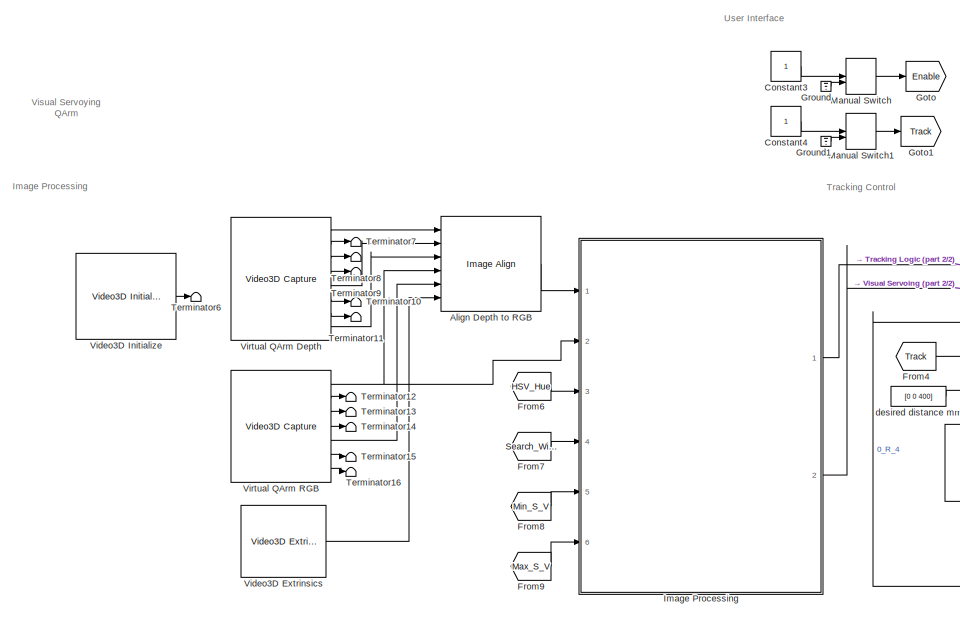
[diagram: root canvas - part 1/2, left side, full height]
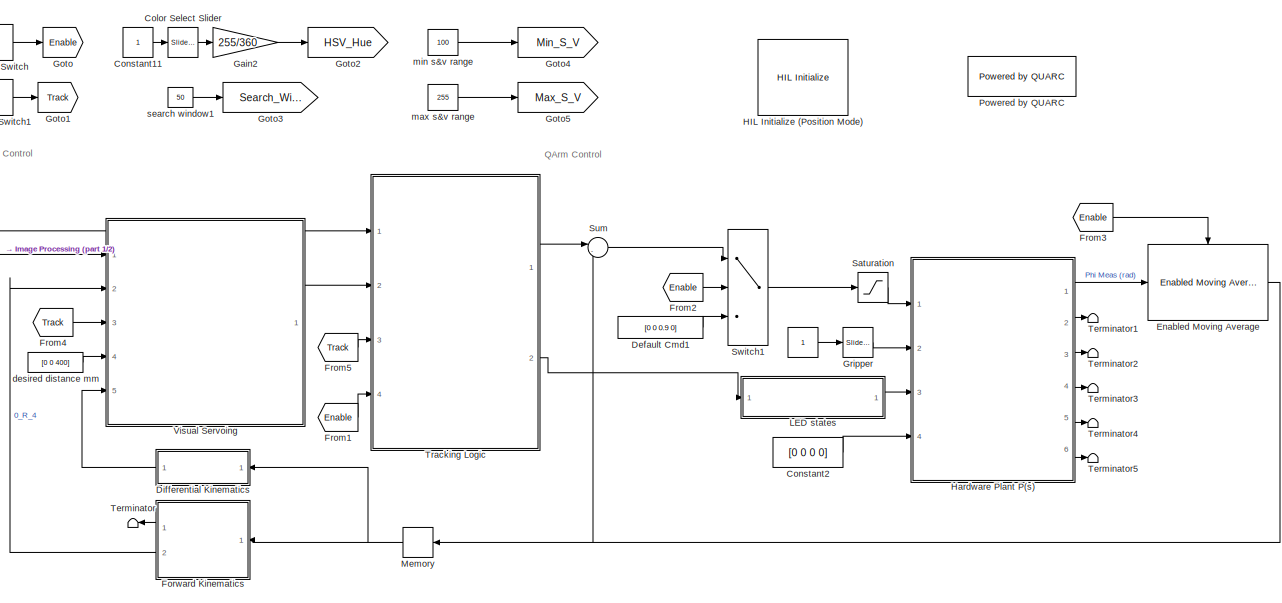
[diagram: root canvas - part 2/2, right side, full height]
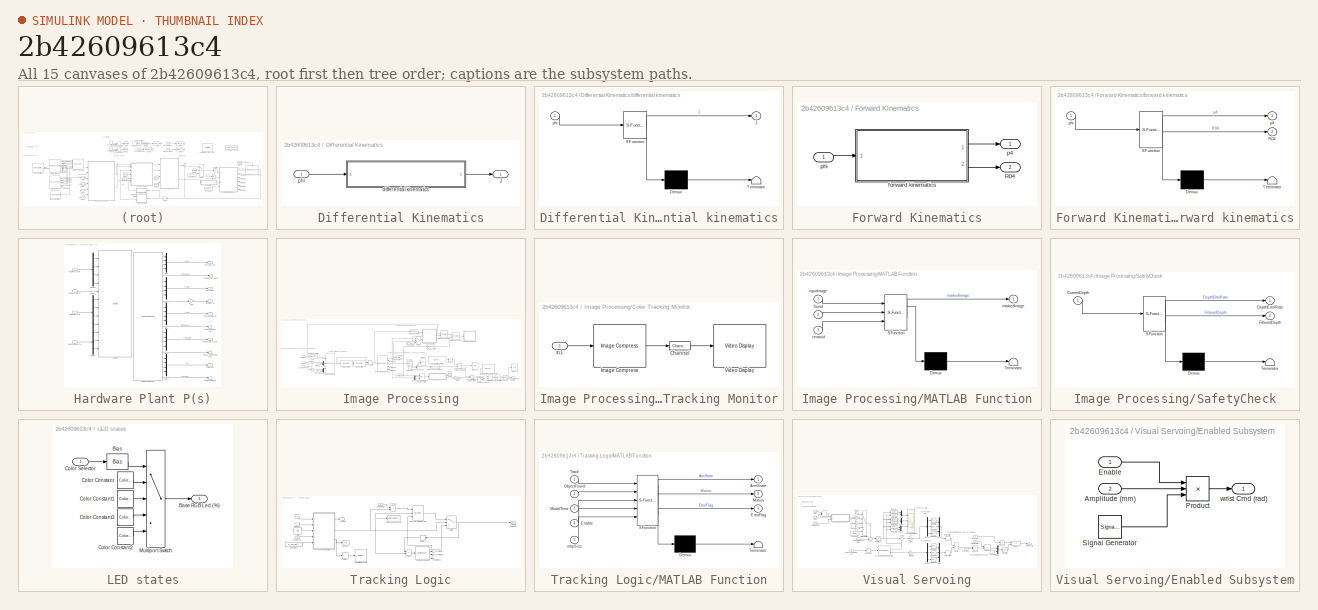
[diagram: thumbnail index - all 15 canvases of the model, root first then tree order]
MODEL slx_2b42609613c4
KIND model
CONFIG AbsTol = auto
CONFIG EnableMultiTasking = on
CONFIG FixedStep = 1/500
CONFIG MaxStep = auto
CONFIG MinStep = auto
CONFIG RelTol = 1e-3
CONFIG SampleTimeConstraint = Unconstrained
CONFIG SolverName = ode4
CONFIG StartTime = 0.0
CONFIG StopTime = inf
BLOCK [Constant]  
BLOCK [Reference] Align Depth to RGB   REF=quarc_library/Image Processing/Generic/Image Align
  Ports = [6, 1]
  SourceBlock = quarc_library/Image Processing/Generic/Image Align
  SourceProductName = QUARC Targets
  SourceType = Image Align
BLOCK [Reference] Color Select Slider  REF=simulink/Math
Operations/Slider
Gain
  Ports = [1, 1]
  SourceBlock = simulink/Math\nOperations/Slider\nGain
  SourceType = Slider Gain
BLOCK [Constant] Constant11
BLOCK [Constant] Constant2
  Value = [0 0 0 0]
BLOCK [Constant] Constant3
BLOCK [Constant] Constant4
BLOCK [Constant] Default Cmd1
  Value = [0 0 0.9 0]
BLOCK [SubSystem] Differential Kinematics
  Ports = [1, 1]
BLOCK [Outport] Differential Kinematics/J
BLOCK [SubSystem] Differential Kinematics/differential kinematics
  ErrorFcn = Stateflow.Translate.translate
  NameLocation = top
  PermitHierarchicalResolution = ExplicitOnly
  Ports = [1, 1]
  SFBlockType = MATLAB Function
  TreatAsAtomicUnit = on
BLOCK [Demux] Differential Kinematics/differential kinematics/ Demux 
  Outputs = 1
  Ports = [1, 1]
BLOCK [S-Function] Differential Kinematics/differential kinematics/ SFunction 
  EnableBusSupport = off
  FunctionName = sf_sfun
  PortCounts = [1 2]
  Ports = [1, 2]
  SFcnIsStateOwnerBlock = off
  SFunctionDeploymentMode = off
  Tag = Stateflow S-Function 6
BLOCK [Terminator] Differential Kinematics/differential kinematics/ Terminator 
BLOCK [Outport] Differential Kinematics/differential kinematics/J
  VectorParamsAs1DForOutWhenUnconnected = off
BLOCK [Inport] Differential Kinematics/differential kinematics/phi
BLOCK [Inport] Differential Kinematics/phi
  NameLocation = top
BLOCK [Reference] Enabled Moving Average  REF=quarc_library/Discrete/Enabled Moving Average
  Ports = [1, 1, 1]
  SourceBlock = quarc_library/Discrete/Enabled Moving Average
  SourceProductName = QUARC Targets
  SourceType = Enabled Moving Average
BLOCK [SubSystem] Forward Kinematics
  Ports = [1, 2]
BLOCK [Outport] Forward Kinematics/R04
  Port = 2
BLOCK [SubSystem] Forward Kinematics/forward kinematics
  ErrorFcn = Stateflow.Translate.translate
  NameLocation = top
  PermitHierarchicalResolution = ExplicitOnly
  Ports = [1, 2]
  SFBlockType = MATLAB Function
  TreatAsAtomicUnit = on
BLOCK [Demux] Forward Kinematics/forward kinematics/ Demux 
  Outputs = 1
  Ports = [1, 1]
BLOCK [S-Function] Forward Kinematics/forward kinematics/ SFunction 
  EnableBusSupport = off
  FunctionName = sf_sfun
  PortCounts = [1 3]
  Ports = [1, 3]
  SFcnIsStateOwnerBlock = off
  SFunctionDeploymentMode = off
  Tag = Stateflow S-Function 3
BLOCK [Terminator] Forward Kinematics/forward kinematics/ Terminator 
BLOCK [Outport] Forward Kinematics/forward kinematics/R04
  Port = 2
  VectorParamsAs1DForOutWhenUnconnected = off
BLOCK [Outport] Forward Kinematics/forward kinematics/p4
  VectorParamsAs1DForOutWhenUnconnected = off
BLOCK [Inport] Forward Kinematics/forward kinematics/phi
BLOCK [Outport] Forward Kinematics/p4
  NameLocation = top
BLOCK [Inport] Forward Kinematics/phi
BLOCK [From] From1
  GotoTag = Enable
BLOCK [From] From2
  GotoTag = Enable
BLOCK [From] From3
  GotoTag = Enable
BLOCK [From] From4
  GotoTag = Track
BLOCK [From] From5
  GotoTag = Track
BLOCK [From] From6
  GotoTag = HSV_Hue
BLOCK [From] From7
  GotoTag = Search_Window
BLOCK [From] From8
  GotoTag = Min_S_V
BLOCK [From] From9
  GotoTag = Max_S_V
BLOCK [Gain] Gain2
  Gain = 255/360
  NameLocation = top
BLOCK [Goto] Goto
  GotoTag = Enable
  NameLocation = right
BLOCK [Goto] Goto1
  GotoTag = Track
  NameLocation = right
BLOCK [Goto] Goto2
  GotoTag = HSV_Hue
  NameLocation = right
BLOCK [Goto] Goto3
  GotoTag = Search_Window
  NameLocation = right
BLOCK [Goto] Goto4
  GotoTag = Min_S_V
  NameLocation = right
BLOCK [Goto] Goto5
  GotoTag = Max_S_V
  NameLocation = right
BLOCK [Reference] Gripper  REF=simulink/Math
Operations/Slider
Gain
  NameLocation = top
  Ports = [1, 1]
  SourceBlock = simulink/Math\nOperations/Slider\nGain
  SourceType = Slider Gain
BLOCK [Ground] Ground
BLOCK [Ground] Ground1
BLOCK [Reference] HIL Initialize (Position Mode)  REF=quarc_library/Data Acquisition/Generic/Configuration/HIL Initialize
  AttributesFormatString = %<object_name> (%<board_type>-%<board_number>)
  Ports = []
  SourceBlock = quarc_library/Data Acquisition/Generic/Configuration/HIL Initialize
  SourceProductName = QUARC Targets
  SourceType = HIL Initialize
  UserDataPersistent = on
BLOCK [SubSystem] Hardware Plant P(s)
  Permissions = NoReadOrWrite
  Ports = [4, 6]
BLOCK [Inport] Hardware Plant P(s)/Base RGB Led (%)
  Port = 3
BLOCK [Outport] Hardware Plant P(s)/Current (A) [4]
  Port = 5
  VectorParamsAs1DForOutWhenUnconnected = off
BLOCK [Demux] Hardware Plant P(s)/Demux
  Outputs = 3
  Ports = [1, 3]
BLOCK [Demux] Hardware Plant P(s)/Demux1
  Ports = [1, 4]
BLOCK [Demux] Hardware Plant P(s)/Demux2
  Ports = [1, 4]
BLOCK [Gain] Hardware Plant P(s)/Gain
BLOCK [Outport] Hardware Plant P(s)/Gripper (%)
  Port = 2
  VectorParamsAs1DForOutWhenUnconnected = off
BLOCK [Inport] Hardware Plant P(s)/Gripper Cmd (%)
  Port = 2
BLOCK [Terminator] Hardware Plant P(s)/Gripper Current (A)
BLOCK [Terminator] Hardware Plant P(s)/Gripper PWM (%)
BLOCK [Terminator] Hardware Plant P(s)/Gripper Speed (%//s)
BLOCK [Terminator] Hardware Plant P(s)/Gripper Temperature (C)
BLOCK [Reference] Hardware Plant P(s)/HIL Read Timebase1  REF=quarc_library/Data Acquisition/Generic/Timebases/HIL Read
Timebase
  AttributesFormatString = (%<object_name>)
  Ports = [0, 25]
  SourceBlock = quarc_library/Data Acquisition/Generic/Timebases/HIL Read\nTimebase
  SourceProductName = QUARC Targets
  SourceType = HIL Read Timebase
  UserDataPersistent = on
BLOCK [Reference] Hardware Plant P(s)/HIL Write  REF=quarc_library/Data Acquisition/Generic/Immediate I//O/HIL Write
  AttributesFormatString = (%<object_name>)
  Ports = [12]
  SourceBlock = quarc_library/Data Acquisition/Generic/Immediate I//O/HIL Write
  SourceProductName = QUARC Targets
  SourceType = HIL Write
  UserDataPersistent = on
BLOCK [Mux] Hardware Plant P(s)/Mux
  DisplayOption = bar
  Ports = [4, 1]
BLOCK [Mux] Hardware Plant P(s)/Mux1
  DisplayOption = bar
  Ports = [4, 1]
BLOCK [Mux] Hardware Plant P(s)/Mux2
  DisplayOption = bar
  Ports = [4, 1]
BLOCK [Mux] Hardware Plant P(s)/Mux3
  DisplayOption = bar
  Ports = [4, 1]
BLOCK [Mux] Hardware Plant P(s)/Mux4
  DisplayOption = bar
  Ports = [4, 1]
BLOCK [Outport] Hardware Plant P(s)/PWM (%) [4]
  Port = 4
  VectorParamsAs1DForOutWhenUnconnected = off
BLOCK [Inport] Hardware Plant P(s)/PWM Cmd (%) [4]
  Port = 4
BLOCK [Outport] Hardware Plant P(s)/Phi (rad) [4]
  VectorParamsAs1DForOutWhenUnconnected = off
BLOCK [Inport] Hardware Plant P(s)/Phi Cmd (rad) [4]
BLOCK [Outport] Hardware Plant P(s)/Phi_dot (rad//s) [4]
  Port = 3
  VectorParamsAs1DForOutWhenUnconnected = off
BLOCK [Outport] Hardware Plant P(s)/Temperature (C) [4]
  Port = 6
  VectorParamsAs1DForOutWhenUnconnected = off
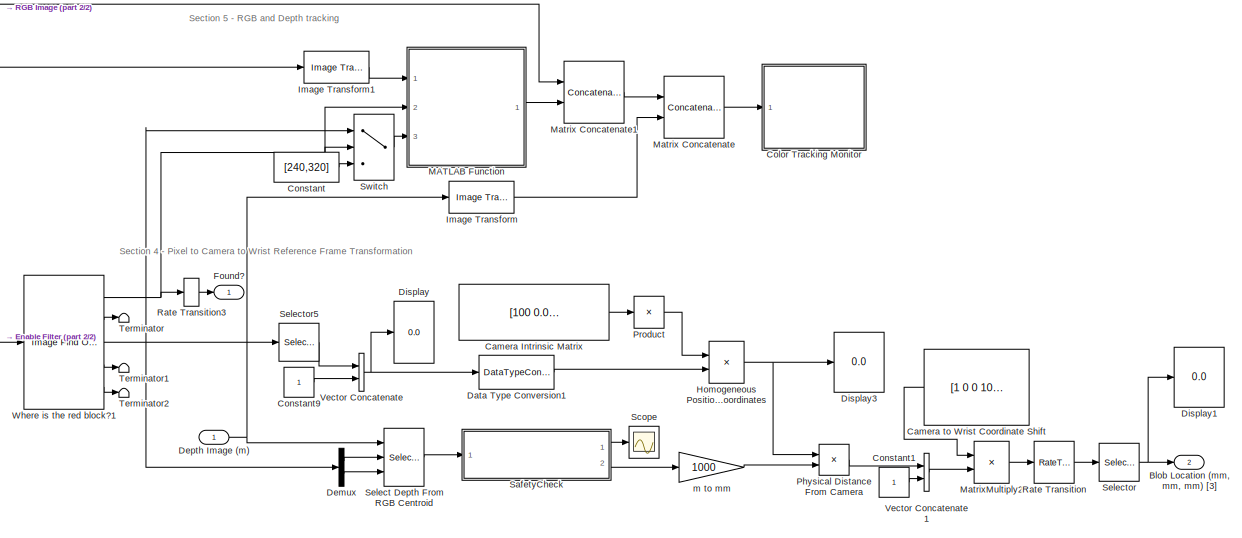
[diagram: Image Processing - part 1/2, right side, full height]
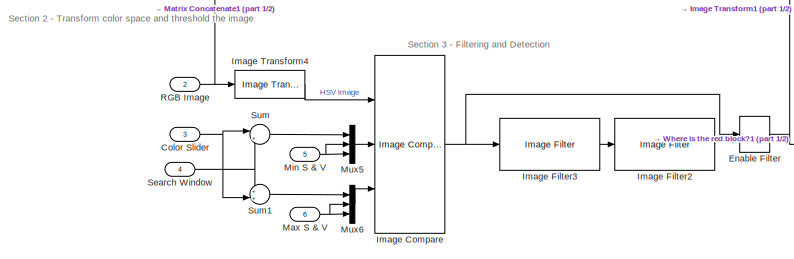
[diagram: Image Processing - part 2/2, middle left region]
BLOCK [SubSystem] Image Processing
  Ports = [6, 2]
BLOCK [Outport] Image Processing/Blob Location (mm, mm, mm) [3]
  Port = 2
  VectorParamsAs1DForOutWhenUnconnected = off
BLOCK [Constant] Image Processing/Camera Intrinsic Matrix
  NameLocation = top
  Value = [100    0.00  100;  0.00  100 100;\n  0.00    0.00    1.00]
BLOCK [Constant] Image Processing/Camera to Wrist Coordinate Shift
  NameLocation = top
  Value = [1  0 0  10 ;  0  1  0 10 ;\n  0 0 1 10 ; 0 0 0 1]
BLOCK [Inport] Image Processing/Color Slider
  Port = 3
BLOCK [SubSystem] Image Processing/Color Tracking Monitor
  CopyFcn = set_param(gcbh, 'UserData', gcb);\nset_param(gcbh, 'LinkStatus', 'none');
  LoadFcn = set_param(gcbh, 'UserData', gcb);
  NameChangeFcn = video_display_show([get_param(gcbh, 'UserData'), '/Video Display'], 'rename', [gcb, '/Video Display']);\nvideo_display_show([gcb, '/Video Display'], 'add', gcb);\nset_param(gcbh, 'UserData', gcb);
  OpenFcn = video_display_show([gcb, '/Video Display'], 'show', gcb);
  Ports = [1]
  PreDeleteFcn = video_display_show([gcb, '/Video Display'], 'delete');
  StartFcn = video_display_show([gcb, '/Video Display'], 'add', gcb);
  UndoDeleteFcn = set_param(gcbh, 'UserData', gcb);
BLOCK [Reference] Image Processing/Color Tracking Monitor/Channel  REF=quarc_library/Signal Routing/Channel
  Ports = [1, 1]
  SourceBlock = quarc_library/Signal Routing/Channel
  SourceProductName = QUARC Targets
  SourceType = Channel
BLOCK [Reference] Image Processing/Color Tracking Monitor/Image Compress  REF=quarc_library/Image Processing/Generic/Image Compress
  AttributesFormatString = (%<algorithm>)
  Ports = [1, 1]
  SourceBlock = quarc_library/Image Processing/Generic/Image Compress
  SourceProductName = QUARC Targets
  SourceType = Image Compress
BLOCK [Inport] Image Processing/Color Tracking Monitor/In1
BLOCK [Reference] Image Processing/Color Tracking Monitor/Video Display  REF=quarc_library/Multimedia/Video Display
  Ports = [1]
  SourceBlock = quarc_library/Multimedia/Video Display
  SourceProductName = QUARC Targets
  SourceType = Video Display
  Tag = VisualServoing_2022a/Image Processing/Color Tracking Monitor/Video Display
  UserDataPersistent = on
BLOCK [Constant] Image Processing/Constant
  Value = [240,320]
BLOCK [Constant] Image Processing/Constant1
  OutDataTypeStr = Inherit: Inherit via back propagation
BLOCK [Constant] Image Processing/Constant9
  OutDataTypeStr = Inherit: Inherit via back propagation
BLOCK [DataTypeConversion] Image Processing/Data Type Conversion1
  RndMeth = Floor
  SaturateOnIntegerOverflow = off
BLOCK [Demux] Image Processing/Demux
  Outputs = 2
  Ports = [1, 2]
BLOCK [Inport] Image Processing/Depth Image (m) 
BLOCK [Display] Image Processing/Display
  Decimation = 1
  Ports = [1]
BLOCK [Display] Image Processing/Display1
  Decimation = 1
  Ports = [1]
BLOCK [Display] Image Processing/Display3
  Decimation = 1
  Ports = [1]
BLOCK [ManualSwitch] Image Processing/Enable Filter
  CurrentSetting = 0
BLOCK [Outport] Image Processing/Found?
  VectorParamsAs1DForOutWhenUnconnected = off
BLOCK [Product] Image Processing/Homogeneous Position coordinates
  Multiplication = Matrix(*)
  Ports = [2, 1]
BLOCK [Reference] Image Processing/Image Compare  REF=quarc_library/Image Processing/Generic/Image Compare
  Ports = [3, 1]
  SourceBlock = quarc_library/Image Processing/Generic/Image Compare
  SourceProductName = QUARC Targets
  SourceType = Image Compare
BLOCK [Reference] Image Processing/Image Filter2  REF=quarc_library/Image Processing/Generic/Image Filter
  AttributesFormatString = (%<filter_type>)
  Ports = [1, 1]
  SourceBlock = quarc_library/Image Processing/Generic/Image Filter
  SourceProductName = QUARC Targets
  SourceType = Image Filter
BLOCK [Reference] Image Processing/Image Filter3  REF=quarc_library/Image Processing/Generic/Image Filter
  AttributesFormatString = (%<filter_type>)
  Ports = [1, 1]
  SourceBlock = quarc_library/Image Processing/Generic/Image Filter
  SourceProductName = QUARC Targets
  SourceType = Image Filter
BLOCK [Reference] Image Processing/Image Transform  REF=quarc_library/Image Processing/Generic/Image Transform
  AttributesFormatString = (%<algorithm>)
  Ports = [1, 1]
  SourceBlock = quarc_library/Image Processing/Generic/Image Transform
  SourceProductName = QUARC Targets
  SourceType = Image Transform
BLOCK [Reference] Image Processing/Image Transform1  REF=quarc_library/Image Processing/Generic/Image Transform
  AttributesFormatString = (%<algorithm>)
  Ports = [1, 1]
  SourceBlock = quarc_library/Image Processing/Generic/Image Transform
  SourceProductName = QUARC Targets
  SourceType = Image Transform
BLOCK [Reference] Image Processing/Image Transform4  REF=quarc_library/Image Processing/Generic/Image Transform
  AttributesFormatString = (%<algorithm>)
  NameLocation = top
  Ports = [1, 1]
  SourceBlock = quarc_library/Image Processing/Generic/Image Transform
  SourceProductName = QUARC Targets
  SourceType = Image Transform
BLOCK [SubSystem] Image Processing/MATLAB Function
  ErrorFcn = Stateflow.Translate.translate
  PermitHierarchicalResolution = ExplicitOnly
  Ports = [3, 1]
  SFBlockType = MATLAB Function
  TreatAsAtomicUnit = on
BLOCK [Demux] Image Processing/MATLAB Function/ Demux 
  Outputs = 1
  Ports = [1, 1]
BLOCK [S-Function] Image Processing/MATLAB Function/ SFunction 
  EnableBusSupport = off
  FunctionName = sf_sfun
  PortCounts = [3 2]
  Ports = [3, 2]
  SFcnIsStateOwnerBlock = off
  SFunctionDeploymentMode = off
  Tag = Stateflow S-Function 1
BLOCK [Terminator] Image Processing/MATLAB Function/ Terminator 
BLOCK [Inport] Image Processing/MATLAB Function/centroid
  Port = 3
BLOCK [Inport] Image Processing/MATLAB Function/found
  Port = 2
BLOCK [Inport] Image Processing/MATLAB Function/inputImage
BLOCK [Outport] Image Processing/MATLAB Function/markedImage
BLOCK [Concatenate] Image Processing/Matrix Concatenate
  ConcatenateDimension = 2
  Mode = Multidimensional array
  Ports = [2, 1]
BLOCK [Concatenate] Image Processing/Matrix Concatenate1
  ConcatenateDimension = 2
  Mode = Multidimensional array
  Ports = [2, 1]
BLOCK [Product] Image Processing/MatrixMultiply2
  Multiplication = Matrix(*)
  Ports = [2, 1]
BLOCK [Inport] Image Processing/Max S & V
  Port = 6
BLOCK [Inport] Image Processing/Min S & V
  Port = 5
BLOCK [Mux] Image Processing/Mux5
  DisplayOption = bar
  Inputs = 3
  Ports = [3, 1]
BLOCK [Mux] Image Processing/Mux6
  DisplayOption = bar
  Inputs = 3
  Ports = [3, 1]
BLOCK [Product] Image Processing/Physical Distance From Camera 
  Multiplication = Matrix(*)
  Ports = [2, 1]
BLOCK [Product] Image Processing/Product
  Inputs = /
  Multiplication = Matrix(*)
  Ports = [1, 1]
BLOCK [Inport] Image Processing/RGB Image
  Port = 2
BLOCK [RateTransition] Image Processing/Rate Transition
BLOCK [RateTransition] Image Processing/Rate Transition3
BLOCK [SubSystem] Image Processing/SafetyCheck
  ErrorFcn = Stateflow.Translate.translate
  PermitHierarchicalResolution = ExplicitOnly
  Ports = [1, 2]
  SFBlockType = MATLAB Function
  TreatAsAtomicUnit = on
BLOCK [Demux] Image Processing/SafetyCheck/ Demux 
  Outputs = 1
  Ports = [1, 1]
BLOCK [S-Function] Image Processing/SafetyCheck/ SFunction 
  EnableBusSupport = off
  FunctionName = sf_sfun
  PortCounts = [1 3]
  Ports = [1, 3]
  SFcnIsStateOwnerBlock = off
  SFunctionDeploymentMode = off
  Tag = Stateflow S-Function 2
BLOCK [Terminator] Image Processing/SafetyCheck/ Terminator 
BLOCK [Inport] Image Processing/SafetyCheck/CurrentDepth
BLOCK [Outport] Image Processing/SafetyCheck/DepthErrorRate
BLOCK [Outport] Image Processing/SafetyCheck/FilteredDepth
  Port = 2
BLOCK [Scope] Image Processing/Scope
  Floating = off
  NumInputPorts = 1
  Ports = [1]
  ScopeSpecificationString = Simulink.scopes.TimeScopeBlockCfg('CurrentConfiguration', extmgr.ConfigurationSet(extmgr.Configuration('Core','General UI',true),extmgr.Configuration('Core','Source UI',true),extmgr.Configuration('Sources','WiredSimulink',true,'DataLoggingVariableName','ScopeData1'),extmgr.Configuration('Visuals','Time Domain',true,'SerializedDisplays',{struct('MinYLimReal','-1.68538','MaxYLimReal','15.11838','YLa...<+1443ch>
BLOCK [Inport] Image Processing/Search Window
  Port = 4
BLOCK [Selector] Image Processing/Select Depth From RGB Centroid
  IndexMode = Zero-based
  IndexOptions = Starting index (port),Starting index (port)
  Indices = [1 3],1
  InputPortWidth = 3
  NumberOfDimensions = 2
  OutputSizes = 1,1
  Ports = [3, 1]
BLOCK [Selector] Image Processing/Selector
  IndexOptions = Index vector (dialog)
  Indices = [1:3]
  InputPortWidth = 4
  OutputSizes = 1
  Ports = [1, 1]
BLOCK [Selector] Image Processing/Selector5
  IndexOptions = Index vector (dialog)
  Indices = [2,1]
  InputPortWidth = 2
  OutputSizes = 1
  Ports = [1, 1]
BLOCK [Sum] Image Processing/Sum
  Inputs = |+-
  Ports = [2, 1]
BLOCK [Sum] Image Processing/Sum1
  Inputs = ++|
  Ports = [2, 1]
BLOCK [Switch] Image Processing/Switch
  Criteria = u2 > Threshold
  InputSameDT = off
  SaturateOnIntegerOverflow = off
BLOCK [Terminator] Image Processing/Terminator
BLOCK [Terminator] Image Processing/Terminator1
BLOCK [Terminator] Image Processing/Terminator2
BLOCK [Concatenate] Image Processing/Vector Concatenate
  Ports = [2, 1]
BLOCK [Concatenate] Image Processing/Vector Concatenate1
  Ports = [2, 1]
BLOCK [Reference] Image Processing/Where is the red block?1  REF=quarc_library/Image Processing/Generic/Image Find Objects
  Ports = [1, 5]
  SourceBlock = quarc_library/Image Processing/Generic/Image Find Objects
  SourceProductName = QUARC Targets
  SourceType = Image Find Objects
BLOCK [Gain] Image Processing/m to mm 
  Gain = 1000
BLOCK [SubSystem] LED states
  NameLocation = top
  Ports = [1, 1]
BLOCK [Outport] LED states/Base RGB Led (%)
BLOCK [Bias] LED states/Bias
  Bias = 1
  SaturateOnIntegerOverflow = off
BLOCK [Reference] LED states/Color Constant  REF=quarc_library/Sources/Signals/Color Constant
  Ports = [0, 1]
  SourceBlock = quarc_library/Sources/Signals/Color Constant
  SourceProductName = QUARC Targets
  SourceType = Color Constant
BLOCK [Reference] LED states/Color Constant1  REF=quarc_library/Sources/Signals/Color Constant
  Ports = [0, 1]
  SourceBlock = quarc_library/Sources/Signals/Color Constant
  SourceProductName = QUARC Targets
  SourceType = Color Constant
BLOCK [Reference] LED states/Color Constant2  REF=quarc_library/Sources/Signals/Color Constant
  Ports = [0, 1]
  SourceBlock = quarc_library/Sources/Signals/Color Constant
  SourceProductName = QUARC Targets
  SourceType = Color Constant
BLOCK [Reference] LED states/Color Constant3  REF=quarc_library/Sources/Signals/Color Constant
  Ports = [0, 1]
  SourceBlock = quarc_library/Sources/Signals/Color Constant
  SourceProductName = QUARC Targets
  SourceType = Color Constant
BLOCK [Inport] LED states/Color Selector
BLOCK [MultiPortSwitch] LED states/Multiport Switch
  InputSameDT = off
  Inputs = 4
  Ports = [5, 1]
  SaturateOnIntegerOverflow = off
BLOCK [ManualSwitch] Manual Switch
  CurrentSetting = 0
BLOCK [ManualSwitch] Manual Switch1
  CurrentSetting = 0
BLOCK [Memory] Memory
BLOCK [Reference] Powered by QUARC  REF=quarc_library/Logos/Powered by QUARC
  Ports = []
  SourceBlock = quarc_library/Logos/Powered by QUARC
  SourceProductName = QUARC Targets
  SourceType = Powered by QUARC
BLOCK [Saturate] Saturation
  LowerLimit = [deg2rad(-165) deg2rad(-85) deg2rad(-95) deg2rad(-45)]
  UpperLimit = [deg2rad(165) deg2rad(85) deg2rad(75) deg2rad(45)]
BLOCK [Sum] Sum
  Inputs = |-+
  Ports = [2, 1]
BLOCK [Switch] Switch1
  Criteria = u2 > Threshold
  InputSameDT = off
  SaturateOnIntegerOverflow = off
BLOCK [Terminator] Terminator
BLOCK [Terminator] Terminator1
BLOCK [Terminator] Terminator10
BLOCK [Terminator] Terminator11
BLOCK [Terminator] Terminator12
BLOCK [Terminator] Terminator13
BLOCK [Terminator] Terminator14
BLOCK [Terminator] Terminator15
BLOCK [Terminator] Terminator16
BLOCK [Terminator] Terminator2
BLOCK [Terminator] Terminator3
BLOCK [Terminator] Terminator4
BLOCK [Terminator] Terminator5
BLOCK [Terminator] Terminator6
BLOCK [Terminator] Terminator7
BLOCK [Terminator] Terminator8
BLOCK [Terminator] Terminator9
BLOCK [SubSystem] Tracking Logic
  Ports = [4, 2]
BLOCK [Outport] Tracking Logic/Arm State 
  Port = 2
BLOCK [Constant] Tracking Logic/Constant
  Value = qc_get_step_size
BLOCK [Reference] Tracking Logic/Continuous Sigmoid  REF=quarc_library/Sources/Sigmoids/Continuous Sigmoid
  Ports = [1, 4]
  SourceBlock = quarc_library/Sources/Sigmoids/Continuous Sigmoid
  SourceProductName = QUARC Targets
  SourceType = Continuous Sigmoid
BLOCK [DataTypeConversion] Tracking Logic/Data Type Conversion
  RndMeth = Floor
  SaturateOnIntegerOverflow = off
BLOCK [Delay] Tracking Logic/Delay
  DelayLength = 250
  InputPortMap = u0
  Ports = [1, 1]
BLOCK [DiscreteIntegrator] Tracking Logic/Discrete-Time Integrator
  ExternalReset = either
  ICPrevOutput = DiscIntNeverNeededParam
  ICPrevScaledInput = DiscIntNeverNeededParam
  InitialConditionSetting = Auto
  InitialConditionSource = external
  Ports = [3, 1]
  SampleTime = -1
BLOCK [Display] Tracking Logic/Display5
  Decimation = 1
  Ports = [1]
BLOCK [Inport] Tracking Logic/Enable (0,1)
  Port = 4
BLOCK [Inport] Tracking Logic/Found?
BLOCK [Outport] Tracking Logic/Joint Delta Command
  VectorParamsAs1DForOutWhenUnconnected = off
BLOCK [Inport] Tracking Logic/Joint Velocity
  Port = 2
BLOCK [SubSystem] Tracking Logic/MATLAB Function
  ErrorFcn = Stateflow.Translate.translate
  PermitHierarchicalResolution = ExplicitOnly
  Ports = [5, 3]
  SFBlockType = MATLAB Function
  TreatAsAtomicUnit = on
BLOCK [Demux] Tracking Logic/MATLAB Function/ Demux 
  Outputs = 1
  Ports = [1, 1]
BLOCK [S-Function] Tracking Logic/MATLAB Function/ SFunction 
  EnableBusSupport = off
  FunctionName = sf_sfun
  PortCounts = [5 4]
  Ports = [5, 4]
  SFcnIsStateOwnerBlock = off
  SFunctionDeploymentMode = off
  Tag = Stateflow S-Function 4
BLOCK [Terminator] Tracking Logic/MATLAB Function/ Terminator 
BLOCK [Outport] Tracking Logic/MATLAB Function/ArmState
BLOCK [Inport] Tracking Logic/MATLAB Function/Enable
  Port = 4
BLOCK [Outport] Tracking Logic/MATLAB Function/ErrorFlag
  Port = 3
BLOCK [Inport] Tracking Logic/MATLAB Function/ModelTime
  Port = 3
BLOCK [Outport] Tracking Logic/MATLAB Function/Motion
  Port = 2
BLOCK [Inport] Tracking Logic/MATLAB Function/ObjectFound
  Port = 2
BLOCK [Inport] Tracking Logic/MATLAB Function/Track
BLOCK [Inport] Tracking Logic/MATLAB Function/stepSize
  Port = 5
BLOCK [Memory] Tracking Logic/Memory
  NameLocation = top
BLOCK [Product] Tracking Logic/Product
  Ports = [2, 1]
BLOCK [Product] Tracking Logic/Product1
  Ports = [2, 1]
BLOCK [Reference] Tracking Logic/Stop with Message  REF=quarc_library/Sinks/Error Handling/Stop with Message
  AttributesFormatString = "%<message>"
  Ports = [1]
  SourceBlock = quarc_library/Sinks/Error Handling/Stop with Message
  SourceProductName = QUARC Targets
  SourceType = Stop with Message
BLOCK [Switch] Tracking Logic/Switch
  Criteria = u2 > Threshold
  InputSameDT = off
  SaturateOnIntegerOverflow = off
BLOCK [Terminator] Tracking Logic/Terminator
BLOCK [Terminator] Tracking Logic/Terminator1
BLOCK [Terminator] Tracking Logic/Terminator2
BLOCK [Reference] Tracking Logic/Time  REF=quarc_library/Sources/Time/Time
  Ports = [0, 1]
  SourceBlock = quarc_library/Sources/Time/Time
  SourceProductName = QUARC Targets
  SourceType = Time
BLOCK [Inport] Tracking Logic/track
  Port = 3
BLOCK [Reference] Video3D Extrinsics  REF=quarc_library/Multimedia/Video3D Extrinsics
  Ports = [0, 1]
  SourceBlock = quarc_library/Multimedia/Video3D Extrinsics
  SourceProductName = QUARC Targets
  SourceType = Video3D Extrinsics
  UserDataPersistent = on
BLOCK [Reference] Video3D Initialize  REF=quarc_library/Multimedia/Video3D Initialize
  Ports = [0, 1]
  SourceBlock = quarc_library/Multimedia/Video3D Initialize
  SourceProductName = QUARC Targets
  SourceType = Video3D Initialize
BLOCK [Reference] Virtual QArm Depth  REF=quarc_library/Multimedia/Video3D Capture
  Ports = [0, 8]
  SourceBlock = quarc_library/Multimedia/Video3D Capture
  SourceProductName = QUARC Targets
  SourceType = Video3D Capture
  UserDataPersistent = on
BLOCK [Reference] Virtual QArm RGB  REF=quarc_library/Multimedia/Video3D Capture
  Ports = [0, 7]
  SourceBlock = quarc_library/Multimedia/Video3D Capture
  SourceProductName = QUARC Targets
  SourceType = Video3D Capture
  UserDataPersistent = on
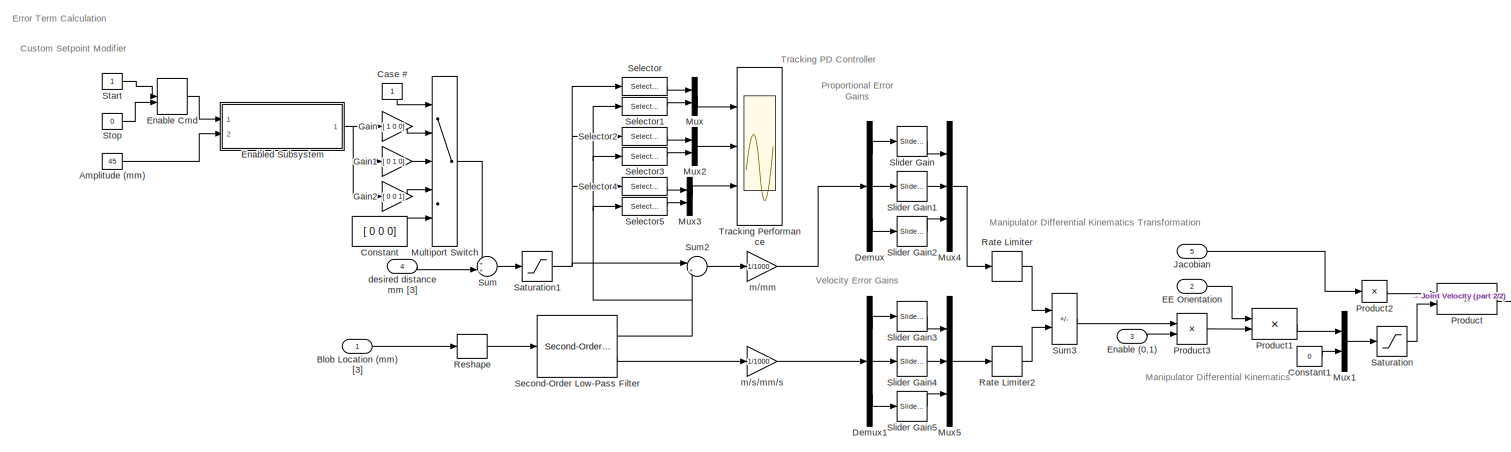
[diagram: Visual Servoing - part 1/2, most of the canvas]
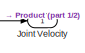
[diagram: Visual Servoing - part 2/2, bottom right region]
BLOCK [SubSystem] Visual Servoing
  Ports = [5, 1]
BLOCK [Constant] Visual Servoing/Amplitude (mm)
  Value = 45
BLOCK [Inport] Visual Servoing/Blob Location (mm) [3]
BLOCK [Constant] Visual Servoing/Case #
  NameLocation = top
BLOCK [Constant] Visual Servoing/Constant
  Value = [ 0 0 0]
BLOCK [Constant] Visual Servoing/Constant1
  SampleTime = qc_get_step_size
  Value = 0
BLOCK [Demux] Visual Servoing/Demux
  Outputs = 3
  Ports = [1, 3]
BLOCK [Demux] Visual Servoing/Demux1
  Outputs = 3
  Ports = [1, 3]
BLOCK [Inport] Visual Servoing/EE Orientation
  Port = 2
BLOCK [Inport] Visual Servoing/Enable (0,1)
  Port = 3
BLOCK [ManualSwitch] Visual Servoing/Enable Cmd
  CurrentSetting = 0
BLOCK [SubSystem] Visual Servoing/Enabled Subsystem
  Ports = [2, 1]
  TreatAsAtomicUnit = on
BLOCK [Inport] Visual Servoing/Enabled Subsystem/Amplitude (mm)
  Port = 2
BLOCK [Inport] Visual Servoing/Enabled Subsystem/Enable
BLOCK [Product] Visual Servoing/Enabled Subsystem/Product
  Inputs = 3
  Ports = [3, 1]
BLOCK [SignalGenerator] Visual Servoing/Enabled Subsystem/Signal Generator
  Frequency = 1/10
  Ports = [0, 1]
  WaveForm = square
BLOCK [Outport] Visual Servoing/Enabled Subsystem/wrist Cmd (rad)
BLOCK [Gain] Visual Servoing/Gain
  Gain = [ 1 0 0]
BLOCK [Gain] Visual Servoing/Gain1
  Gain = [ 0 1 0]
BLOCK [Gain] Visual Servoing/Gain2
  Gain = [ 0 0 1]
BLOCK [Inport] Visual Servoing/Jacobian
  Port = 5
BLOCK [Outport] Visual Servoing/Joint Velocity
  VectorParamsAs1DForOutWhenUnconnected = off
BLOCK [MultiPortSwitch] Visual Servoing/Multiport Switch
  InputSameDT = off
  Inputs = 4
  Ports = [5, 1]
  SaturateOnIntegerOverflow = off
BLOCK [Mux] Visual Servoing/Mux
  DisplayOption = bar
  Inputs = 2
  Ports = [2, 1]
BLOCK [Mux] Visual Servoing/Mux1
  DisplayOption = bar
  Inputs = 2
  Ports = [2, 1]
BLOCK [Mux] Visual Servoing/Mux2
  DisplayOption = bar
  Inputs = 2
  Ports = [2, 1]
BLOCK [Mux] Visual Servoing/Mux3
  DisplayOption = bar
  Inputs = 2
  Ports = [2, 1]
BLOCK [Mux] Visual Servoing/Mux4
  DisplayOption = bar
  Inputs = 3
  Ports = [3, 1]
BLOCK [Mux] Visual Servoing/Mux5
  DisplayOption = bar
  Inputs = 3
  Ports = [3, 1]
BLOCK [Product] Visual Servoing/Product
  Multiplication = Matrix(*)
  Ports = [2, 1]
BLOCK [Product] Visual Servoing/Product1
  Multiplication = Matrix(*)
  Ports = [2, 1]
BLOCK [Product] Visual Servoing/Product2
  Inputs = /
  Multiplication = Matrix(*)
  Ports = [1, 1]
BLOCK [Product] Visual Servoing/Product3
  Ports = [2, 1]
BLOCK [RateLimiter] Visual Servoing/Rate Limiter
  SampleTimeMode = inherited
BLOCK [RateLimiter] Visual Servoing/Rate Limiter2
  FallingSlewLimit = -10
  RisingSlewLimit = 10
  SampleTimeMode = inherited
BLOCK [Reshape] Visual Servoing/Reshape
  Ports = [1, 1]
BLOCK [Saturate] Visual Servoing/Saturation
  LowerLimit = [-0.2 -0.2 -0.4 -0.2]
  UpperLimit = [0.2 0.2 0.4 0.2]
BLOCK [Saturate] Visual Servoing/Saturation1
  LowerLimit = [-45 -140 320]
  UpperLimit = [200 140 500]
BLOCK [Reference] Visual Servoing/Second-Order Low-Pass Filter  REF=quarc_library/Continuous/Second-Order
Low-Pass Filter
  Ports = [1, 2]
  SourceBlock = quarc_library/Continuous/Second-Order\nLow-Pass Filter
  SourceProductName = QUARC Targets
  SourceType = Second-Order Low-Pass Filter
BLOCK [Selector] Visual Servoing/Selector
  IndexOptions = Index vector (dialog)
  Indices = [1]
  InputPortWidth = 3
  OutputSizes = 1
  Ports = [1, 1]
BLOCK [Selector] Visual Servoing/Selector1
  IndexOptions = Index vector (dialog)
  Indices = [1]
  InputPortWidth = 3
  OutputSizes = 1
  Ports = [1, 1]
BLOCK [Selector] Visual Servoing/Selector2
  IndexOptions = Index vector (dialog)
  Indices = [2]
  InputPortWidth = 3
  OutputSizes = 1
  Ports = [1, 1]
BLOCK [Selector] Visual Servoing/Selector3
  IndexOptions = Index vector (dialog)
  Indices = [2]
  InputPortWidth = 3
  OutputSizes = 1
  Ports = [1, 1]
BLOCK [Selector] Visual Servoing/Selector4
  IndexOptions = Index vector (dialog)
  Indices = [3]
  InputPortWidth = 3
  OutputSizes = 1
  Ports = [1, 1]
BLOCK [Selector] Visual Servoing/Selector5
  IndexOptions = Index vector (dialog)
  Indices = [3]
  InputPortWidth = 3
  OutputSizes = 1
  Ports = [1, 1]
BLOCK [Reference] Visual Servoing/Slider Gain  REF=simulink/Math
Operations/Slider
Gain
  Ports = [1, 1]
  SourceBlock = simulink/Math\nOperations/Slider\nGain
  SourceType = Slider Gain
BLOCK [Reference] Visual Servoing/Slider Gain1  REF=simulink/Math
Operations/Slider
Gain
  Ports = [1, 1]
  SourceBlock = simulink/Math\nOperations/Slider\nGain
  SourceType = Slider Gain
BLOCK [Reference] Visual Servoing/Slider Gain2  REF=simulink/Math
Operations/Slider
Gain
  Ports = [1, 1]
  SourceBlock = simulink/Math\nOperations/Slider\nGain
  SourceType = Slider Gain
BLOCK [Reference] Visual Servoing/Slider Gain3  REF=simulink/Math
Operations/Slider
Gain
  Ports = [1, 1]
  SourceBlock = simulink/Math\nOperations/Slider\nGain
  SourceType = Slider Gain
BLOCK [Reference] Visual Servoing/Slider Gain4  REF=simulink/Math
Operations/Slider
Gain
  Ports = [1, 1]
  SourceBlock = simulink/Math\nOperations/Slider\nGain
  SourceType = Slider Gain
BLOCK [Reference] Visual Servoing/Slider Gain5  REF=simulink/Math
Operations/Slider
Gain
  Ports = [1, 1]
  SourceBlock = simulink/Math\nOperations/Slider\nGain
  SourceType = Slider Gain
BLOCK [Constant] Visual Servoing/Start
BLOCK [Constant] Visual Servoing/Stop
  Value = 0
BLOCK [Sum] Visual Servoing/Sum
  Inputs = ++|
  Ports = [2, 1]
BLOCK [Sum] Visual Servoing/Sum2
  Inputs = |+-
  Ports = [2, 1]
BLOCK [Sum] Visual Servoing/Sum3
  IconShape = rectangular
  Inputs = +-
  Ports = [2, 1]
BLOCK [Scope] Visual Servoing/Tracking Performance
  Floating = off
  NumInputPorts = 3
  Ports = [3]
  ScopeSpecificationString = Simulink.scopes.TimeScopeBlockCfg('CurrentConfiguration', extmgr.ConfigurationSet(extmgr.Configuration('Core','General UI',true),extmgr.Configuration('Core','Source UI',true),extmgr.Configuration('Sources','WiredSimulink',true),extmgr.Configuration('Visuals','Time Domain',true,'SerializedDisplays',{struct('MinYLimReal','-200.00000','MaxYLimReal','200.00000','YLabelReal','','MinYLimMag',' 0.00000',...<+2721ch>
BLOCK [Inport] Visual Servoing/desired distance mm [3]
  Port = 4
BLOCK [Gain] Visual Servoing/m//mm
  Gain = 1/1000
BLOCK [Gain] Visual Servoing/m//s//mm//s
  Gain = 1/1000
BLOCK [Constant] desired distance mm
  Value = [0 0 400]
BLOCK [Constant] max s&v range
  Value = 255
BLOCK [Constant] min s&v range
  Value = 100
BLOCK [Constant] search window1
  Value = 50
ANNOTATION (root): Visual Servoying QArm
ANNOTATION (root): Image Processing
ANNOTATION (root): QArm Control
ANNOTATION (root): Tracking Control
ANNOTATION (root): User Interface
ANNOTATION Image Processing: Section 2 - Transform color space and threshold the image
ANNOTATION Image Processing: Section 3 - Filtering and Detection
ANNOTATION Image Processing: Section 4 - Pixel to Camera to Wrist Reference Frame Transformation
ANNOTATION Image Processing: Section 5 - RGB and Depth tracking
ANNOTATION Visual Servoing: Manipulator Differential Kinematics
ANNOTATION Visual Servoing: Custom Setpoint Modifier
ANNOTATION Visual Servoing: Error Term Calculation
ANNOTATION Visual Servoing: Manipulator Differential Kinematics Transformation
ANNOTATION Visual Servoing: Proportional Error Gains
ANNOTATION Visual Servoing: Tracking PD Controller
ANNOTATION Visual Servoing: Velocity Error Gains
LINE  :1 -> Gripper:1
LINE Align Depth to RGB :1 -> Image Processing:1
LINE Color Select Slider:1 -> Gain2:1
LINE Constant11:1 -> Color Select Slider:1
LINE Constant2:1 -> Hardware Plant P(s):4
LINE Constant3:1 -> Manual Switch:1
LINE Constant4:1 -> Manual Switch1:1
LINE Default Cmd1:1 -> Switch1:3
LINE Differential Kinematics/differential kinematics:1 -> Differential Kinematics/J:1
LINE Differential Kinematics/phi:1 -> Differential Kinematics/differential kinematics:1
LINE Differential Kinematics:1 -> Visual Servoing:5
NET Enabled Moving Average:1 -> Memory:1, Sum:2
LINE Forward Kinematics/forward kinematics:1 -> Forward Kinematics/p4:1
LINE Forward Kinematics/forward kinematics:2 -> Forward Kinematics/R04:1
LINE Forward Kinematics/phi:1 -> Forward Kinematics/forward kinematics:1
LINE Forward Kinematics:1 -> Terminator:1
LINE Forward Kinematics:2 -> Visual Servoing:2
LINE From1:1 -> Tracking Logic:4
LINE From2:1 -> Switch1:2
LINE From3:1 -> Enabled Moving Average:enable
LINE From4:1 -> Visual Servoing:3
LINE From5:1 -> Tracking Logic:3
LINE From6:1 -> Image Processing:3
LINE From7:1 -> Image Processing:4
LINE From8:1 -> Image Processing:5
LINE From9:1 -> Image Processing:6
LINE Gain2:1 -> Goto2:1
LINE Gripper:1 -> Hardware Plant P(s):2
LINE Ground1:1 -> Manual Switch1:2
LINE Ground:1 -> Manual Switch:2
LINE Hardware Plant P(s)/Base RGB Led (%):1 -> Hardware Plant P(s)/Demux:1
LINE Hardware Plant P(s)/Demux1:1 -> Hardware Plant P(s)/HIL Write:1
LINE Hardware Plant P(s)/Demux1:2 -> Hardware Plant P(s)/HIL Write:2
LINE Hardware Plant P(s)/Demux1:3 -> Hardware Plant P(s)/HIL Write:3
LINE Hardware Plant P(s)/Demux1:4 -> Hardware Plant P(s)/HIL Write:4
LINE Hardware Plant P(s)/Demux2:1 -> Hardware Plant P(s)/HIL Write:6
LINE Hardware Plant P(s)/Demux2:2 -> Hardware Plant P(s)/HIL Write:7
LINE Hardware Plant P(s)/Demux2:3 -> Hardware Plant P(s)/HIL Write:8
LINE Hardware Plant P(s)/Demux2:4 -> Hardware Plant P(s)/HIL Write:9
LINE Hardware Plant P(s)/Demux:1 -> Hardware Plant P(s)/HIL Write:10
LINE Hardware Plant P(s)/Demux:2 -> Hardware Plant P(s)/HIL Write:11
LINE Hardware Plant P(s)/Demux:3 -> Hardware Plant P(s)/HIL Write:12
LINE Hardware Plant P(s)/Gain:1 -> Hardware Plant P(s)/Gripper (%):1
LINE Hardware Plant P(s)/Gripper Cmd (%):1 -> Hardware Plant P(s)/HIL Write:5
LINE Hardware Plant P(s)/HIL Read Timebase1:1 -> Hardware Plant P(s)/Mux:1
LINE Hardware Plant P(s)/HIL Read Timebase1:10 -> Hardware Plant P(s)/Gain:1
LINE Hardware Plant P(s)/HIL Read Timebase1:11 -> Hardware Plant P(s)/Mux1:1
LINE Hardware Plant P(s)/HIL Read Timebase1:12 -> Hardware Plant P(s)/Mux1:2
LINE Hardware Plant P(s)/HIL Read Timebase1:13 -> Hardware Plant P(s)/Mux1:3
LINE Hardware Plant P(s)/HIL Read Timebase1:14 -> Hardware Plant P(s)/Mux1:4
LINE Hardware Plant P(s)/HIL Read Timebase1:15 -> Hardware Plant P(s)/Gripper Speed (%//s):1
LINE Hardware Plant P(s)/HIL Read Timebase1:16 -> Hardware Plant P(s)/Mux3:1
LINE Hardware Plant P(s)/HIL Read Timebase1:17 -> Hardware Plant P(s)/Mux3:2
LINE Hardware Plant P(s)/HIL Read Timebase1:18 -> Hardware Plant P(s)/Mux3:3
LINE Hardware Plant P(s)/HIL Read Timebase1:19 -> Hardware Plant P(s)/Mux3:4
LINE Hardware Plant P(s)/HIL Read Timebase1:2 -> Hardware Plant P(s)/Mux:2
LINE Hardware Plant P(s)/HIL Read Timebase1:20 -> Hardware Plant P(s)/Gripper Temperature (C):1
LINE Hardware Plant P(s)/HIL Read Timebase1:21 -> Hardware Plant P(s)/Mux4:1
LINE Hardware Plant P(s)/HIL Read Timebase1:22 -> Hardware Plant P(s)/Mux4:2
LINE Hardware Plant P(s)/HIL Read Timebase1:23 -> Hardware Plant P(s)/Mux4:3
LINE Hardware Plant P(s)/HIL Read Timebase1:24 -> Hardware Plant P(s)/Mux4:4
LINE Hardware Plant P(s)/HIL Read Timebase1:25 -> Hardware Plant P(s)/Gripper PWM (%):1
LINE Hardware Plant P(s)/HIL Read Timebase1:3 -> Hardware Plant P(s)/Mux:3
LINE Hardware Plant P(s)/HIL Read Timebase1:4 -> Hardware Plant P(s)/Mux:4
LINE Hardware Plant P(s)/HIL Read Timebase1:5 -> Hardware Plant P(s)/Gripper Current (A):1
LINE Hardware Plant P(s)/HIL Read Timebase1:6 -> Hardware Plant P(s)/Mux2:1
LINE Hardware Plant P(s)/HIL Read Timebase1:7 -> Hardware Plant P(s)/Mux2:2
LINE Hardware Plant P(s)/HIL Read Timebase1:8 -> Hardware Plant P(s)/Mux2:3
LINE Hardware Plant P(s)/HIL Read Timebase1:9 -> Hardware Plant P(s)/Mux2:4
LINE Hardware Plant P(s)/Mux1:1 -> Hardware Plant P(s)/Phi_dot (rad//s) [4]:1
LINE Hardware Plant P(s)/Mux2:1 -> Hardware Plant P(s)/Phi (rad) [4]:1
LINE Hardware Plant P(s)/Mux3:1 -> Hardware Plant P(s)/Temperature (C) [4]:1
LINE Hardware Plant P(s)/Mux4:1 -> Hardware Plant P(s)/PWM (%) [4]:1
LINE Hardware Plant P(s)/Mux:1 -> Hardware Plant P(s)/Current (A) [4]:1
LINE Hardware Plant P(s)/PWM Cmd (%) [4]:1 -> Hardware Plant P(s)/Demux2:1
LINE Hardware Plant P(s)/Phi Cmd (rad) [4]:1 -> Hardware Plant P(s)/Demux1:1
LINE Hardware Plant P(s):1 -> Enabled Moving Average:1
LINE Hardware Plant P(s):2 -> Terminator1:1
LINE Hardware Plant P(s):3 -> Terminator2:1
LINE Hardware Plant P(s):4 -> Terminator3:1
LINE Hardware Plant P(s):5 -> Terminator4:1
LINE Hardware Plant P(s):6 -> Terminator5:1
LINE Image Processing/Camera Intrinsic Matrix:1 -> Image Processing/Product:1
LINE Image Processing/Camera to Wrist Coordinate Shift:1 -> Image Processing/MatrixMultiply2:1
NET Image Processing/Color Slider:1 -> Image Processing/Sum1:2, Image Processing/Sum:1
LINE Image Processing/Constant1:1 -> Image Processing/Vector Concatenate1:2
LINE Image Processing/Constant9:1 -> Image Processing/Vector Concatenate:2
LINE Image Processing/Constant:1 -> Image Processing/Switch:3
LINE Image Processing/Data Type Conversion1:1 -> Image Processing/Homogeneous Position coordinates:2
LINE Image Processing/Demux:1 -> Image Processing/Select Depth From RGB Centroid:2
LINE Image Processing/Demux:2 -> Image Processing/Select Depth From RGB Centroid:3
NET Image Processing/Depth Image (m) :1 -> Image Processing/Image Transform:1, Image Processing/Select Depth From RGB Centroid:1
NET Image Processing/Enable Filter:1 -> Image Processing/Image Transform1:1, Image Processing/Where is the red block?1:1
NET Image Processing/Homogeneous Position coordinates:1 -> Image Processing/Display3:1, Image Processing/Physical Distance From Camera :1
NET Image Processing/Image Compare:1 -> Image Processing/Enable Filter:1, Image Processing/Image Filter3:1
LINE Image Processing/Image Filter2:1 -> Image Processing/Enable Filter:2
LINE Image Processing/Image Filter3:1 -> Image Processing/Image Filter2:1
LINE Image Processing/Image Transform1:1 -> Image Processing/MATLAB Function:1
LINE Image Processing/Image Transform4:1 -> Image Processing/Image Compare:1
LINE Image Processing/Image Transform:1 -> Image Processing/Matrix Concatenate:2
LINE Image Processing/MATLAB Function:1 -> Image Processing/Matrix Concatenate1:2
LINE Image Processing/Matrix Concatenate1:1 -> Image Processing/Matrix Concatenate:1
LINE Image Processing/Matrix Concatenate:1 -> Image Processing/Color Tracking Monitor:1
LINE Image Processing/MatrixMultiply2:1 -> Image Processing/Rate Transition:1
NET Image Processing/Max S & V:1 -> Image Processing/Mux6:2, Image Processing/Mux6:3
NET Image Processing/Min S & V:1 -> Image Processing/Mux5:2, Image Processing/Mux5:3
LINE Image Processing/Mux5:1 -> Image Processing/Image Compare:2
LINE Image Processing/Mux6:1 -> Image Processing/Image Compare:3
LINE Image Processing/Physical Distance From Camera :1 -> Image Processing/Vector Concatenate1:1
LINE Image Processing/Product:1 -> Image Processing/Homogeneous Position coordinates:1
NET Image Processing/RGB Image:1 -> Image Processing/Image Transform4:1, Image Processing/Matrix Concatenate1:1
LINE Image Processing/Rate Transition3:1 -> Image Processing/Found?:1
LINE Image Processing/Rate Transition:1 -> Image Processing/Selector:1
LINE Image Processing/SafetyCheck:1 -> Image Processing/Scope:1
LINE Image Processing/SafetyCheck:2 -> Image Processing/m to mm :1
NET Image Processing/Search Window:1 -> Image Processing/Sum1:1, Image Processing/Sum:2
LINE Image Processing/Select Depth From RGB Centroid:1 -> Image Processing/SafetyCheck:1
LINE Image Processing/Selector5:1 -> Image Processing/Vector Concatenate:1
NET Image Processing/Selector:1 -> Image Processing/Blob Location (mm, mm, mm) [3]:1, Image Processing/Display1:1
LINE Image Processing/Sum1:1 -> Image Processing/Mux6:1
LINE Image Processing/Sum:1 -> Image Processing/Mux5:1
LINE Image Processing/Switch:1 -> Image Processing/MATLAB Function:3
LINE Image Processing/Vector Concatenate1:1 -> Image Processing/MatrixMultiply2:2
NET Image Processing/Vector Concatenate:1 -> Image Processing/Data Type Conversion1:1, Image Processing/Display:1
NET Image Processing/Where is the red block?1:1 -> Image Processing/MATLAB Function:2, Image Processing/Rate Transition3:1, Image Processing/Switch:2
LINE Image Processing/Where is the red block?1:2 -> Image Processing/Terminator:1
NET Image Processing/Where is the red block?1:3 -> Image Processing/Demux:1, Image Processing/Selector5:1, Image Processing/Switch:1
LINE Image Processing/Where is the red block?1:4 -> Image Processing/Terminator1:1
LINE Image Processing/Where is the red block?1:5 -> Image Processing/Terminator2:1
LINE Image Processing/m to mm :1 -> Image Processing/Physical Distance From Camera :2
LINE Image Processing:1 -> Tracking Logic:1
LINE Image Processing:2 -> Visual Servoing:1
LINE LED states/Bias:1 -> LED states/Multiport Switch:1
LINE LED states/Color Constant1:1 -> LED states/Multiport Switch:3
LINE LED states/Color Constant2:1 -> LED states/Multiport Switch:5
LINE LED states/Color Constant3:1 -> LED states/Multiport Switch:4
LINE LED states/Color Constant:1 -> LED states/Multiport Switch:2
LINE LED states/Color Selector:1 -> LED states/Bias:1
LINE LED states/Multiport Switch:1 -> LED states/Base RGB Led (%):1
LINE LED states:1 -> Hardware Plant P(s):3
LINE Manual Switch1:1 -> Goto1:1
LINE Manual Switch:1 -> Goto:1
NET Memory:1 -> Differential Kinematics:1, Forward Kinematics:1
LINE Saturation:1 -> Hardware Plant P(s):1
LINE Sum:1 -> Switch1:1
LINE Switch1:1 -> Saturation:1
LINE Tracking Logic/Constant:1 -> Tracking Logic/MATLAB Function:5
NET Tracking Logic/Continuous Sigmoid:1 -> Tracking Logic/Discrete-Time Integrator:3, Tracking Logic/Switch:3
LINE Tracking Logic/Continuous Sigmoid:2 -> Tracking Logic/Terminator:1
LINE Tracking Logic/Continuous Sigmoid:3 -> Tracking Logic/Terminator1:1
LINE Tracking Logic/Continuous Sigmoid:4 -> Tracking Logic/Terminator2:1
LINE Tracking Logic/Delay:1 -> Tracking Logic/Stop with Message:1
LINE Tracking Logic/Discrete-Time Integrator:1 -> Tracking Logic/Switch:1
LINE Tracking Logic/Enable (0,1):1 -> Tracking Logic/MATLAB Function:4
LINE Tracking Logic/Found?:1 -> Tracking Logic/MATLAB Function:2
LINE Tracking Logic/Joint Velocity:1 -> Tracking Logic/Product1:1
LINE Tracking Logic/MATLAB Function:1 -> Tracking Logic/Arm State :1
NET Tracking Logic/MATLAB Function:2 -> Tracking Logic/Data Type Conversion:1, Tracking Logic/Discrete-Time Integrator:2, Tracking Logic/Product1:2, Tracking Logic/Product:2, Tracking Logic/Switch:2
NET Tracking Logic/MATLAB Function:3 -> Tracking Logic/Delay:1, Tracking Logic/Display5:1
LINE Tracking Logic/Memory:1 -> Tracking Logic/Product:1
LINE Tracking Logic/Product1:1 -> Tracking Logic/Discrete-Time Integrator:1
LINE Tracking Logic/Product:1 -> Tracking Logic/Continuous Sigmoid:1
NET Tracking Logic/Switch:1 -> Tracking Logic/Joint Delta Command:1, Tracking Logic/Memory:1
LINE Tracking Logic/Time:1 -> Tracking Logic/MATLAB Function:3
LINE Tracking Logic/track:1 -> Tracking Logic/MATLAB Function:1
LINE Tracking Logic:1 -> Sum:1
LINE Tracking Logic:2 -> LED states:1
LINE Video3D Extrinsics:1 -> Align Depth to RGB :6
LINE Video3D Initialize:1 -> Terminator6:1
LINE Virtual QArm Depth:1 -> Align Depth to RGB :1
LINE Virtual QArm Depth:2 -> Terminator7:1
LINE Virtual QArm Depth:3 -> Terminator8:1
LINE Virtual QArm Depth:4 -> Terminator9:1
LINE Virtual QArm Depth:5 -> Align Depth to RGB :2
LINE Virtual QArm Depth:6 -> Terminator10:1
LINE Virtual QArm Depth:7 -> Terminator11:1
LINE Virtual QArm Depth:8 -> Align Depth to RGB :3
NET Virtual QArm RGB:1 -> Align Depth to RGB :4, Image Processing:2
LINE Virtual QArm RGB:2 -> Terminator12:1
LINE Virtual QArm RGB:3 -> Terminator13:1
LINE Virtual QArm RGB:4 -> Terminator14:1
LINE Virtual QArm RGB:5 -> Align Depth to RGB :5
LINE Virtual QArm RGB:6 -> Terminator15:1
LINE Virtual QArm RGB:7 -> Terminator16:1
LINE Visual Servoing/Amplitude (mm):1 -> Visual Servoing/Enabled Subsystem:2
LINE Visual Servoing/Blob Location (mm) [3]:1 -> Visual Servoing/Reshape:1
LINE Visual Servoing/Case #:1 -> Visual Servoing/Multiport Switch:1
LINE Visual Servoing/Constant1:1 -> Visual Servoing/Mux1:2
LINE Visual Servoing/Constant:1 -> Visual Servoing/Multiport Switch:5
LINE Visual Servoing/Demux1:1 -> Visual Servoing/Slider Gain3:1
LINE Visual Servoing/Demux1:2 -> Visual Servoing/Slider Gain4:1
LINE Visual Servoing/Demux1:3 -> Visual Servoing/Slider Gain5:1
LINE Visual Servoing/Demux:1 -> Visual Servoing/Slider Gain:1
LINE Visual Servoing/Demux:2 -> Visual Servoing/Slider Gain1:1
LINE Visual Servoing/Demux:3 -> Visual Servoing/Slider Gain2:1
LINE Visual Servoing/EE Orientation:1 -> Visual Servoing/Product1:1
LINE Visual Servoing/Enable (0,1):1 -> Visual Servoing/Product3:2
LINE Visual Servoing/Enable Cmd:1 -> Visual Servoing/Enabled Subsystem:1
LINE Visual Servoing/Enabled Subsystem/Amplitude (mm):1 -> Visual Servoing/Enabled Subsystem/Product:2
LINE Visual Servoing/Enabled Subsystem/Enable:1 -> Visual Servoing/Enabled Subsystem/Product:1
LINE Visual Servoing/Enabled Subsystem/Product:1 -> Visual Servoing/Enabled Subsystem/wrist Cmd (rad):1
LINE Visual Servoing/Enabled Subsystem/Signal Generator:1 -> Visual Servoing/Enabled Subsystem/Product:3
NET Visual Servoing/Enabled Subsystem:1 -> Visual Servoing/Gain1:1, Visual Servoing/Gain2:1, Visual Servoing/Gain:1
LINE Visual Servoing/Gain1:1 -> Visual Servoing/Multiport Switch:3
LINE Visual Servoing/Gain2:1 -> Visual Servoing/Multiport Switch:4
LINE Visual Servoing/Gain:1 -> Visual Servoing/Multiport Switch:2
LINE Visual Servoing/Jacobian:1 -> Visual Servoing/Product2:1
LINE Visual Servoing/Multiport Switch:1 -> Visual Servoing/Sum:1
LINE Visual Servoing/Mux1:1 -> Visual Servoing/Saturation:1
LINE Visual Servoing/Mux2:1 -> Visual Servoing/Tracking Performance:2
LINE Visual Servoing/Mux3:1 -> Visual Servoing/Tracking Performance:3
LINE Visual Servoing/Mux4:1 -> Visual Servoing/Rate Limiter:1
LINE Visual Servoing/Mux5:1 -> Visual Servoing/Rate Limiter2:1
LINE Visual Servoing/Mux:1 -> Visual Servoing/Tracking Performance:1
LINE Visual Servoing/Product1:1 -> Visual Servoing/Mux1:1
LINE Visual Servoing/Product2:1 -> Visual Servoing/Product:1
LINE Visual Servoing/Product3:1 -> Visual Servoing/Product1:2
LINE Visual Servoing/Product:1 -> Visual Servoing/Joint Velocity:1
LINE Visual Servoing/Rate Limiter2:1 -> Visual Servoing/Sum3:2
LINE Visual Servoing/Rate Limiter:1 -> Visual Servoing/Sum3:1
LINE Visual Servoing/Reshape:1 -> Visual Servoing/Second-Order Low-Pass Filter:1
NET Visual Servoing/Saturation1:1 -> Visual Servoing/Selector2:1, Visual Servoing/Selector4:1, Visual Servoing/Selector:1, Visual Servoing/Sum2:1
LINE Visual Servoing/Saturation:1 -> Visual Servoing/Product:2
NET Visual Servoing/Second-Order Low-Pass Filter:1 -> Visual Servoing/Selector1:1, Visual Servoing/Selector3:1, Visual Servoing/Selector5:1, Visual Servoing/Sum2:2
LINE Visual Servoing/Second-Order Low-Pass Filter:2 -> Visual Servoing/m//s//mm//s:1
LINE Visual Servoing/Selector1:1 -> Visual Servoing/Mux:2
LINE Visual Servoing/Selector2:1 -> Visual Servoing/Mux2:1
LINE Visual Servoing/Selector3:1 -> Visual Servoing/Mux2:2
LINE Visual Servoing/Selector4:1 -> Visual Servoing/Mux3:1
LINE Visual Servoing/Selector5:1 -> Visual Servoing/Mux3:2
LINE Visual Servoing/Selector:1 -> Visual Servoing/Mux:1
LINE Visual Servoing/Slider Gain1:1 -> Visual Servoing/Mux4:2
LINE Visual Servoing/Slider Gain2:1 -> Visual Servoing/Mux4:3
LINE Visual Servoing/Slider Gain3:1 -> Visual Servoing/Mux5:1
LINE Visual Servoing/Slider Gain4:1 -> Visual Servoing/Mux5:2
LINE Visual Servoing/Slider Gain5:1 -> Visual Servoing/Mux5:3
LINE Visual Servoing/Slider Gain:1 -> Visual Servoing/Mux4:1
LINE Visual Servoing/Start:1 -> Visual Servoing/Enable Cmd:1
LINE Visual Servoing/Stop:1 -> Visual Servoing/Enable Cmd:2
LINE Visual Servoing/Sum2:1 -> Visual Servoing/m//mm:1
LINE Visual Servoing/Sum3:1 -> Visual Servoing/Product3:1
LINE Visual Servoing/Sum:1 -> Visual Servoing/Saturation1:1
LINE Visual Servoing/desired distance mm [3]:1 -> Visual Servoing/Sum:2
LINE Visual Servoing/m//mm:1 -> Visual Servoing/Demux:1
LINE Visual Servoing/m//s//mm//s:1 -> Visual Servoing/Demux1:1
LINE Visual Servoing:1 -> Tracking Logic:2
LINE desired distance mm:1 -> Visual Servoing:4
LINE max s&v range:1 -> Goto5:1
LINE min s&v range:1 -> Goto4:1
LINE search window1:1 -> Goto3:1
note: NET lines group one-source signal fan-out (src -> all destinations, sorted); 1:1 wires keep LINE
CHART Image Processing/MATLAB Function states=1 transitions=1
  STATE_LABEL 'eML_blk_kernel()'
  STATE_LABEL 'SCRIPT:\nfunction markedImage = fcn(inputImage, found, centroid)\nsize_im = size(inputImage)\nblank_image = uint8(zeros(size_im))\nCross_length = 30; \n\nif found >= 1;\n    blank_image = inputImage*0.7;\n    Cross_length\n    % Horizontal \n    for i = 1:1:Cross_length;\n    \n            blank_image(floor(centroid(1)),floor(centroid(2)-Cross_length/2+i),1:3) = 255;\n    end \n    \n    % Vertical\n    for i = 1...<+174ch>'
CHART Image Processing/SafetyCheck states=1 transitions=1
  STATE_LABEL 'eML_blk_kernel()'
  STATE_LABEL 'SCRIPT:\nfunction [DepthErrorRate, FilteredDepth]= fcn(CurrentDepth)\n\npersistent  PastDepth  \n\nif isempty(PastDepth)\n\n    PastDepth = double(0);\nend \n\nDepthErrorRate = CurrentDepth - PastDepth;\nif CurrentDepth ~= PastDepth && abs(DepthErrorRate) < 1\n    FilteredDepth = double(CurrentDepth);\n    PastDepth = double(CurrentDepth);\nelse \n    FilteredDepth = double(PastDepth);\n\nend '
CHART Forward Kinematics/forward kinematics states=1 transitions=1
  STATE_LABEL 'eML_blk_kernel()'
  STATE_LABEL 'SCRIPT:\nfunction [p4, R04] = qarmForwardKinematics(phi)\n\n%% QUANSER_ARM_FPK\n% v 4.0 - 4th June 2020\n\n% REFERENCE: \n% Chapter 3. Forward Kinematics\n% Robot Dynamics and Control \n% Spong, Vidyasagar\n% 1989\n\n% INPUTS:\n% phi     : Alternate joint angles vector 4 x 1\n\n% OUTPUTS:\n% p4      : End-effector frame {4} position vector expressed in base frame {0}\n% R04     : rotation matrix from end-effector ...<+2430ch>'
CHART Tracking Logic/MATLAB Function states=1 transitions=1
  STATE_LABEL 'eML_blk_kernel()'
  STATE_LABEL 'SCRIPT:\nfunction [ArmState, Motion,ErrorFlag]= fcn(Track, ObjectFound, ModelTime, Enable, stepSize  )\n\npersistent State ErrorStart check\n\nif isempty(State)\n    State = 0  % Idle State \n    ErrorStart = ModelTime % Initial Timestep\n    check     = 0;\n\n\nend\nMotion    = 0;\nErrorFlag = 0;\nArmState  = State;\ndeltaTime = 0;\neStart = 0;\n%  Singal Generation \n\nswitch State \n    \n    % ========== Idle Stat...<+1352ch>'
CHART Differential Kinematics/differential kinematics states=1 transitions=1
  STATE_LABEL 'eML_blk_kernel()'
  STATE_LABEL 'SCRIPT:\nfunction J   = qarmDifferentialKinematics(phi)\n\n%% QUANSER_ARM_FDK\n% v 1.0 - 13th August 2020\n\n% REFERENCE: \n% Chapter 5. Velocity Kinematics\n% Robot Dynamics and Control \n% Spong, Vidyasagar\n% 1989\n\n% INPUTS:\n% phi     : Alternate joint angles vector 4 x 1\n\n% OUTPUTS:\n% p4      : End-effector frame {4} position vector expressed in base frame {0}\n% R04     : rotation matrix from end-effect...<+1052ch>'
CHART  states=0 transitions=0
CHART  states=0 transitions=0
CHART  states=0 transitions=0
CHART  states=0 transitions=0
CHART  states=0 transitions=0
